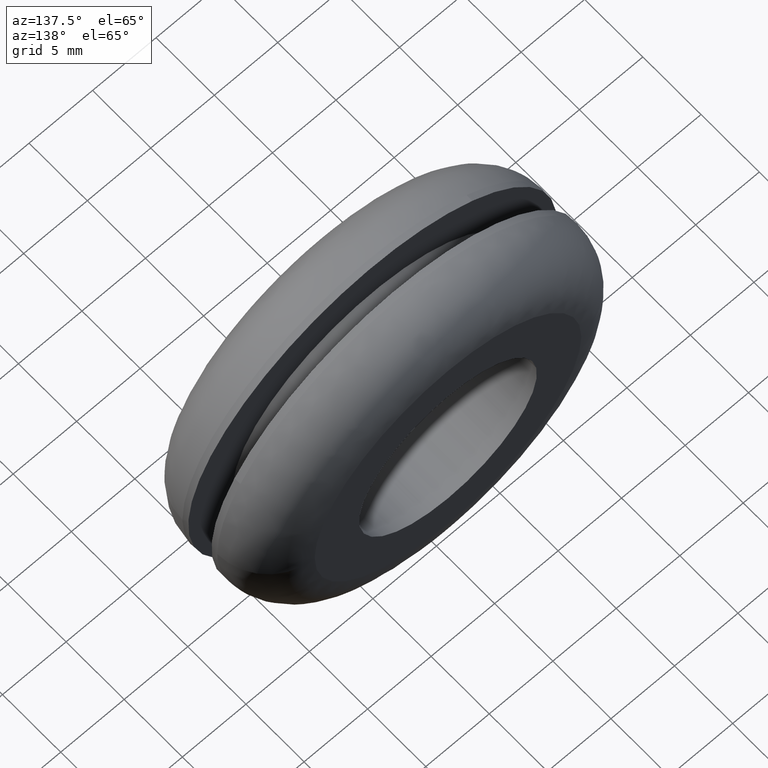
[diagram: clean part render]
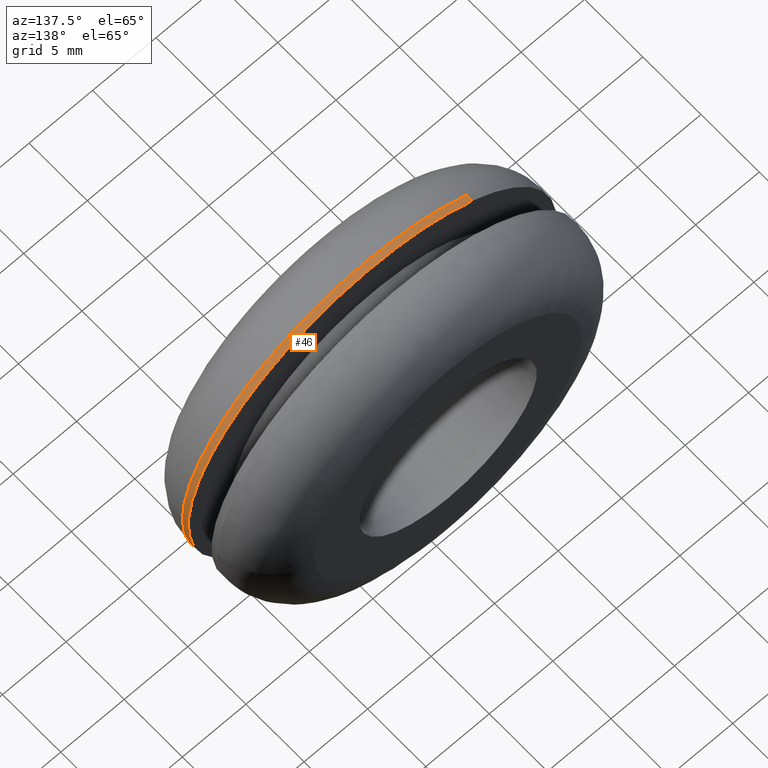
[diagram: same view with one face highlighted and labeled with its STEP entity id]
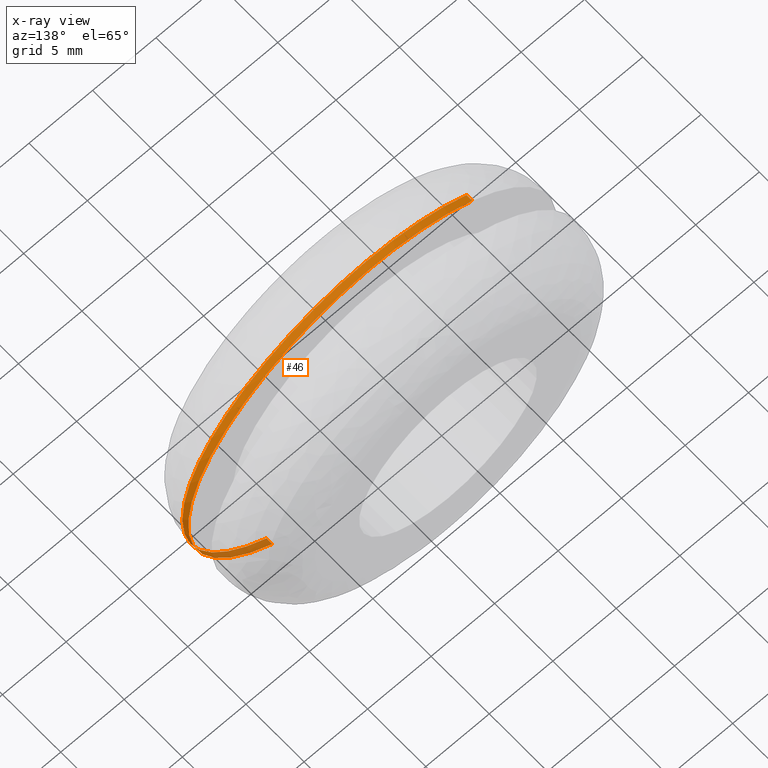
[diagram: x-ray of the same camera — body ghosted, the highlighted face saturated]
A machine part, auxiliary view. The second image highlights one B-rep face of the part: STEP entity #46.
The next image is the same camera in x-ray: the body ghosted, the highlighted face saturated — about 10% of this face is hidden behind the body in this view.
In plain terms, the highlighted cylindrical surface (partial cylindrical patch) has radius 14.5 mm, axis along (-0, 1, -0).
Its self-contained STEP definition (entity closure, byte-faithful):
#46=ADVANCED_FACE('',(#121),#120,.T.);
#120=CYLINDRICAL_SURFACE('',#257,1.45000000000E+001);
#121=FACE_OUTER_BOUND('',#258,.T.);
#254=CARTESIAN_POINT('',(-1.72289254367E-015,4.51250000000E+000,-1.88528948862E-015));
#255=DIRECTION('',(-6.41828660824E-016,1.00000000000E+000,-4.14734654964E-016));
#256=DIRECTION('',(-5.42728861529E-001,4.93038065763E-032,8.39907960948E-001));
#257=AXIS2_PLACEMENT_3D('',#254,#255,#256);
#258=EDGE_LOOP('',(#422,#423,#424,#425,#426,#427,#428));
#422=ORIENTED_EDGE('',*,*,#491,.T.);
#423=ORIENTED_EDGE('',*,*,#516,.F.);
#424=ORIENTED_EDGE('',*,*,#517,.F.);
#425=ORIENTED_EDGE('',*,*,#518,.F.);
#426=ORIENTED_EDGE('',*,*,#519,.F.);
#427=ORIENTED_EDGE('',*,*,#520,.F.);
#428=ORIENTED_EDGE('',*,*,#521,.T.);
#491=EDGE_CURVE('',#549,#541,#550,.T.);
#516=EDGE_CURVE('',#721,#541,#722,.T.);
#517=EDGE_CURVE('',#728,#721,#729,.T.);
#518=EDGE_CURVE('',#735,#728,#736,.T.);
#519=EDGE_CURVE('',#742,#735,#743,.T.);
#520=EDGE_CURVE('',#749,#742,#750,.T.);
#521=EDGE_CURVE('',#749,#549,#756,.T.);
#541=VERTEX_POINT('',#886);
#549=VERTEX_POINT('',#892);
#550=CIRCLE('',#896,1.45000000000E+001);
#721=VERTEX_POINT('',#1010);
#722=(BOUNDED_CURVE() B_SPLINE_CURVE(1,(#1011,#1012),.UNSPECIFIED.,.F.,.F.) B_SPLINE_CURVE_WITH_KNOTS((2,2),(8.33373864497E-002,9.16666604655E-001),.UNSPECIFIED.) CURVE() GEOMETRIC_REPRESENTATION_ITEM() RATIONAL_B_SPLINE_CURVE((1.00000000000E+000,1.00000000000E+000)) REPRESENTATION_ITEM('') );
#728=VERTEX_POINT('',#1013);
#729=CIRCLE('',#1017,1.45000000000E+001);
#735=VERTEX_POINT('',#1018);
#736=CIRCLE('',#1022,1.45000000000E+001);
#742=VERTEX_POINT('',#1023);
#743=CIRCLE('',#1027,1.45000000000E+001);
#749=VERTEX_POINT('',#1028);
#750=CIRCLE('',#1032,1.45000000000E+001);
#756=(BOUNDED_CURVE() B_SPLINE_CURVE(1,(#1033,#1034),.UNSPECIFIED.,.F.,.F.) B_SPLINE_CURVE_WITH_KNOTS((2,2),(8.33388212183E-002,9.16666666667E-001),.UNSPECIFIED.) CURVE() GEOMETRIC_REPRESENTATION_ITEM() RATIONAL_B_SPLINE_CURVE((7.50000000000E-001,7.50000000000E-001)) REPRESENTATION_ITEM('') );
#886=CARTESIAN_POINT('',(-7.86956849192E+000,4.50000000000E+000,1.21786654339E+001));
#892=CARTESIAN_POINT('',(7.87323524194E+000,4.50000000000E+000,-1.21762952833E+001));
#893=CARTESIAN_POINT('',(1.20792265079E-013,4.50000000000E+000,1.63424829225E-013));
#894=DIRECTION('',(2.27367811910E-017,-1.00000000000E+000,1.46919699117E-017));
#895=DIRECTION('',(-6.99440505514E-015,-1.46919699117E-017,-1.00000000000E+000));
#896=AXIS2_PLACEMENT_3D('',#893,#894,#895);
#1010=CARTESIAN_POINT('',(-7.86956849217E+000,4.00000242933E+000,1.21786654337E+001));
#1011=CARTESIAN_POINT('',(-7.86956849217E+000,4.00000243187E+000,1.21786654337E+001));
#1012=CARTESIAN_POINT('',(-7.86956849217E+000,4.49999996279E+000,1.21786654337E+001));
#1013=CARTESIAN_POINT('',(0.00000000000E+000,4.00000000000E+000,1.45000000000E+001));
#1014=CARTESIAN_POINT('',(3.20188320302E-012,4.00000327366E+000,9.14734954449E-012));
#1015=DIRECTION('',(-2.42102744654E-007,-1.00000000000E+000,-2.25769813695E-007));
#1016=DIRECTION('',(2.20819531243E-013,2.25769813695E-007,-1.00000000000E+000));
#1017=AXIS2_PLACEMENT_3D('',#1014,#1015,#1016);
#1018=CARTESIAN_POINT('',(1.44999999926E+001,4.00000654444E+000,-4.63347092185E-004));
#1019=CARTESIAN_POINT('',(-2.84483547830E-012,4.00000329273E+000,1.11404219183E-011));
#1020=DIRECTION('',(2.24248820211E-007,-1.00000000000E+000,-2.27084521066E-007));
#1021=DIRECTION('',(-9.99921052650E-001,-2.27084516892E-007,1.25653678107E-002));
#1022=AXIS2_PLACEMENT_3D('',#1019,#1020,#1021);
#1023=CARTESIAN_POINT('',(1.44988552634E+001,4.00000658545E+000,-1.82197833244E-001));
#1024=CARTESIAN_POINT('',(-2.84483547830E-012,4.00000329273E+000,1.11404219183E-011));
#1025=DIRECTION('',(2.24248820211E-007,-1.00000000000E+000,-2.27084521066E-007));
#1026=DIRECTION('',(-9.99921052650E-001,-2.27084516892E-007,1.25653678107E-002));
#1027=AXIS2_PLACEMENT_3D('',#1024,#1025,#1026);
#1028=CARTESIAN_POINT('',(7.87020620466E+000,4.00000233704E+000,-1.21782533352E+001));
#1029=CARTESIAN_POINT('',(-1.16884280033E-011,4.00000329273E+000,-8.23074941536E-012));
#1030=DIRECTION('',(2.29955864805E-007,-1.00000000000E+000,2.27084519407E-007));
#1031=DIRECTION('',(-5.42728709040E-001,6.59264683917E-008,8.39908059483E-001));
#1032=AXIS2_PLACEMENT_3D('',#1029,#1030,#1031);
#1033=CARTESIAN_POINT('',(7.86956849217E+000,4.00000329273E+000,-1.21786654337E+001));
#1034=CARTESIAN_POINT('',(7.86956849217E+000,4.50000000000E+000,-1.21786654337E+001));